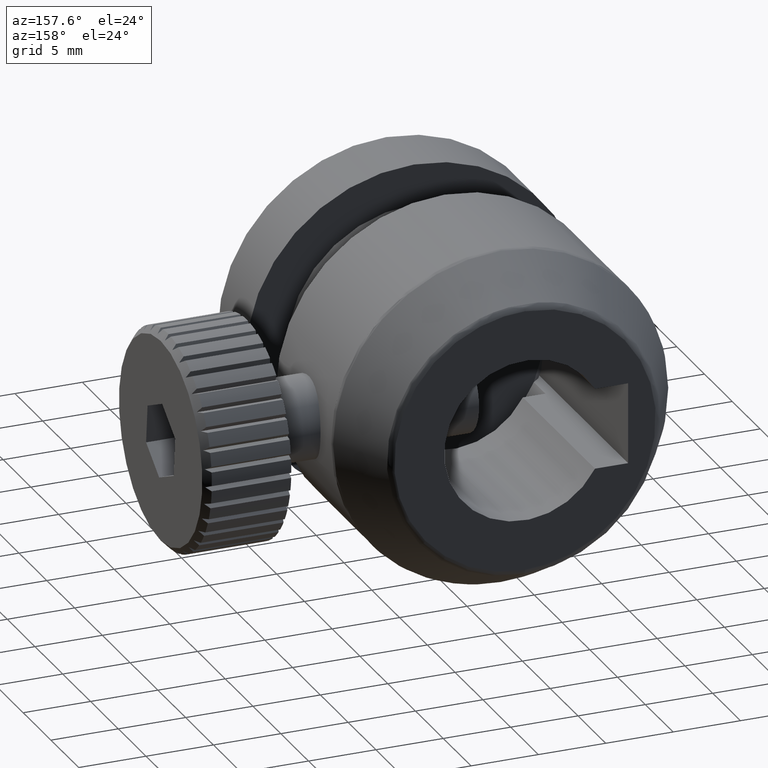
[diagram: clean part render]
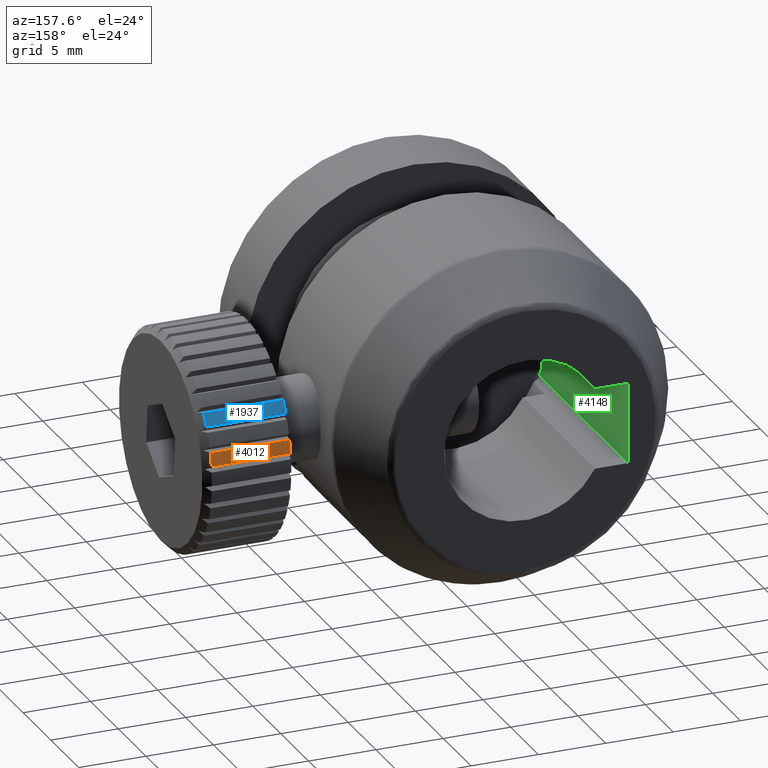
[diagram: same view with three faces highlighted in distinct colors, each labeled with its STEP entity id]
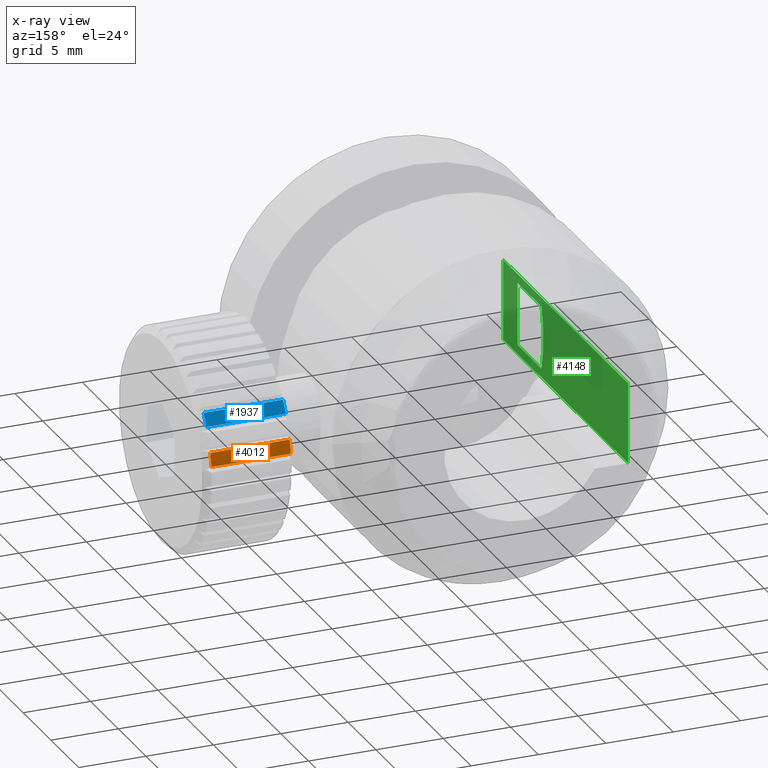
[diagram: x-ray of the same camera — body ghosted, the three highlighted faces saturated]
A machine part, auxiliary view with three faces highlighted in distinct colors.
The next image is the same camera in x-ray (body ghosted, the three faces saturated) — at least one of them is partly hidden behind the body in this view.
Their STEP definitions:

[orange] entity #4012 — the highlighted cylindrical surface (partial cylindrical patch) has radius 8 mm, axis along (1, 0, 0).
#33 = CARTESIAN_POINT ( 'NONE',  ( -2.268710835630495470, 11.38826839223250609, 1.031916268354715172 ) ) ;
#424 = VERTEX_POINT ( 'NONE', #3245 ) ;
#964 = VECTOR ( 'NONE', #3946, 1000.000000000000000 ) ;
#1012 = CYLINDRICAL_SURFACE ( 'NONE', #4987, 7.999999999999994671 ) ;
#1058 = CIRCLE ( 'NONE', #4112, 7.999999999999994671 ) ;
#1310 = DIRECTION ( 'NONE',  ( 2.168404344971010347E-16, 0.000000000000000000, -1.000000000000000000 ) ) ;
#1487 = CARTESIAN_POINT ( 'NONE',  ( 20.13128916436953020, 11.59717246854674144, 0.05976846436289229292 ) ) ;
#1506 = CIRCLE ( 'NONE', #2083, 7.999999999999998224 ) ;
#1536 = ORIENTED_EDGE ( 'NONE', *, *, #2967, .T. ) ;
#1568 = EDGE_LOOP ( 'NONE', ( #4344, #1758, #4881, #1536 ) ) ;
#1653 = EDGE_CURVE ( 'NONE', #424, #3580, #1058, .T. ) ;
#1743 = CARTESIAN_POINT ( 'NONE',  ( 20.13128916436953020, 3.686387940390166040, -1.131654277185411006 ) ) ;
#1758 = ORIENTED_EDGE ( 'NONE', *, *, #2755, .T. ) ;
#1774 = VECTOR ( 'NONE', #4159, 1000.000000000000000 ) ;
#2043 = VERTEX_POINT ( 'NONE', #3285 ) ;
#2083 = AXIS2_PLACEMENT_3D ( 'NONE', #2324, #3884, #2668 ) ;
#2324 = CARTESIAN_POINT ( 'NONE',  ( 19.63128916436953375, 3.686387940390166040, -1.131654277185411006 ) ) ;
#2561 = DIRECTION ( 'NONE',  ( 0.000000000000000000, 0.000000000000000000, -1.000000000000000000 ) ) ;
#2584 = FACE_OUTER_BOUND ( 'NONE', #1568, .T. ) ;
#2616 = CARTESIAN_POINT ( 'NONE',  ( 13.73128916436952451, 11.38826839223250431, 1.031916268354716060 ) ) ;
#2668 = DIRECTION ( 'NONE',  ( 0.000000000000000000, -0.9987437986324323447, 0.05010813001160040886 ) ) ;
#2755 = EDGE_CURVE ( 'NONE', #2043, #424, #3049, .T. ) ;
#2967 = EDGE_CURVE ( 'NONE', #3580, #4627, #4702, .T. ) ;
#3049 = LINE ( 'NONE', #1487, #1774 ) ;
#3245 = CARTESIAN_POINT ( 'NONE',  ( 13.73128916436952274, 11.59717246854673967, 0.05976846436289199455 ) ) ;
#3265 = DIRECTION ( 'NONE',  ( 1.000000000000000000, 5.563119965979017169E-18, 1.108828360943316457E-16 ) ) ;
#3285 = CARTESIAN_POINT ( 'NONE',  ( 19.63128916436953375, 11.59717246854674322, 0.05976846436288947573 ) ) ;
#3580 = VERTEX_POINT ( 'NONE', #2616 ) ;
#3884 = DIRECTION ( 'NONE',  ( 1.000000000000000000, 5.563119965979017169E-18, 1.108828360943316457E-16 ) ) ;
#3946 = DIRECTION ( 'NONE',  ( 1.000000000000000000, -3.653617967992042293E-17, -1.598819398919157440E-16 ) ) ;
#4012 = ADVANCED_FACE ( 'NONE', ( #2584 ), #1012, .T. ) ;
#4112 = AXIS2_PLACEMENT_3D ( 'NONE', #4889, #3265, #1310 ) ;
#4159 = DIRECTION ( 'NONE',  ( -1.000000000000000000, -5.563119965979017169E-18, -1.108828360943316457E-16 ) ) ;
#4344 = ORIENTED_EDGE ( 'NONE', *, *, #4641, .F. ) ;
#4627 = VERTEX_POINT ( 'NONE', #4644 ) ;
#4641 = EDGE_CURVE ( 'NONE', #2043, #4627, #1506, .T. ) ;
#4644 = CARTESIAN_POINT ( 'NONE',  ( 19.63128916436953375, 11.38826839223250609, 1.031916268354711619 ) ) ;
#4702 = LINE ( 'NONE', #33, #964 ) ;
#4881 = ORIENTED_EDGE ( 'NONE', *, *, #1653, .T. ) ;
#4889 = CARTESIAN_POINT ( 'NONE',  ( 13.73128916436951918, 3.686387940390166040, -1.131654277185411672 ) ) ;
#4926 = DIRECTION ( 'NONE',  ( 1.000000000000000000, 5.563119965979017169E-18, 1.108828360943316457E-16 ) ) ;
#4987 = AXIS2_PLACEMENT_3D ( 'NONE', #1743, #4926, #2561 ) ;

[blue] entity #1937 — the highlighted cylindrical surface (partial cylindrical patch) has radius 8 mm, axis along (1, 0, 0).
#107 = VERTEX_POINT ( 'NONE', #1543 ) ;
#281 = ORIENTED_EDGE ( 'NONE', *, *, #4677, .T. ) ;
#307 = CIRCLE ( 'NONE', #3859, 7.999999999999998224 ) ;
#338 = CARTESIAN_POINT ( 'NONE',  ( 13.73128916436952274, 10.71260320930041843, 2.693564539422646842 ) ) ;
#383 = ORIENTED_EDGE ( 'NONE', *, *, #3429, .T. ) ;
#434 = CIRCLE ( 'NONE', #3010, 7.999999999999994671 ) ;
#494 = DIRECTION ( 'NONE',  ( 1.000000000000000000, 5.563119965979017169E-18, 1.108828360943316457E-16 ) ) ;
#569 = CARTESIAN_POINT ( 'NONE',  ( 19.63128916436953375, 3.686387940390166040, -1.131654277185411006 ) ) ;
#622 = LINE ( 'NONE', #4177, #4662 ) ;
#795 = AXIS2_PLACEMENT_3D ( 'NONE', #2883, #494, #4855 ) ;
#1044 = ORIENTED_EDGE ( 'NONE', *, *, #4440, .T. ) ;
#1543 = CARTESIAN_POINT ( 'NONE',  ( 19.63128916436953375, 10.71260320930042198, 2.693564539422647730 ) ) ;
#1937 = ADVANCED_FACE ( 'NONE', ( #4750 ), #1986, .T. ) ;
#1986 = CYLINDRICAL_SURFACE ( 'NONE', #795, 7.999999999999994671 ) ;
#2140 = EDGE_CURVE ( 'NONE', #107, #3231, #307, .T. ) ;
#2347 = DIRECTION ( 'NONE',  ( 2.168404344971010347E-16, 0.000000000000000000, -1.000000000000000000 ) ) ;
#2510 = CARTESIAN_POINT ( 'NONE',  ( 20.13128916436953020, 10.71260320930041843, 2.693564539422648618 ) ) ;
#2743 = CARTESIAN_POINT ( 'NONE',  ( 13.73128916436951918, 3.686387940390166040, -1.131654277185411672 ) ) ;
#2883 = CARTESIAN_POINT ( 'NONE',  ( 20.13128916436953020, 3.686387940390166040, -1.131654277185411006 ) ) ;
#3010 = AXIS2_PLACEMENT_3D ( 'NONE', #2743, #4328, #2347 ) ;
#3231 = VERTEX_POINT ( 'NONE', #4991 ) ;
#3251 = VERTEX_POINT ( 'NONE', #338 ) ;
#3429 = EDGE_CURVE ( 'NONE', #107, #3251, #4803, .T. ) ;
#3472 = CARTESIAN_POINT ( 'NONE',  ( 13.73128916436952274, 10.18380345908081708, 3.535635255024673906 ) ) ;
#3596 = DIRECTION ( 'NONE',  ( -1.000000000000000000, -5.563119965979017169E-18, -1.108828360943316457E-16 ) ) ;
#3636 = EDGE_LOOP ( 'NONE', ( #3650, #383, #281, #1044 ) ) ;
#3650 = ORIENTED_EDGE ( 'NONE', *, *, #2140, .F. ) ;
#3727 = VERTEX_POINT ( 'NONE', #3472 ) ;
#3859 = AXIS2_PLACEMENT_3D ( 'NONE', #569, #4547, #4516 ) ;
#4177 = CARTESIAN_POINT ( 'NONE',  ( -2.268710835630495470, 10.18380345908081708, 3.535635255024671242 ) ) ;
#4197 = VECTOR ( 'NONE', #3596, 1000.000000000000000 ) ;
#4328 = DIRECTION ( 'NONE',  ( 1.000000000000000000, 5.563119965979017169E-18, 1.108828360943316457E-16 ) ) ;
#4440 = EDGE_CURVE ( 'NONE', #3727, #3231, #622, .T. ) ;
#4516 = DIRECTION ( 'NONE',  ( 0.000000000000000000, -0.9987437986324323447, 0.05010813001160040886 ) ) ;
#4547 = DIRECTION ( 'NONE',  ( 1.000000000000000000, 5.563119965979017169E-18, 1.108828360943316457E-16 ) ) ;
#4548 = DIRECTION ( 'NONE',  ( 1.000000000000000000, 2.035006556008971217E-17, -1.627359885240675400E-16 ) ) ;
#4662 = VECTOR ( 'NONE', #4548, 1000.000000000000000 ) ;
#4677 = EDGE_CURVE ( 'NONE', #3251, #3727, #434, .T. ) ;
#4750 = FACE_OUTER_BOUND ( 'NONE', #3636, .T. ) ;
#4803 = LINE ( 'NONE', #2510, #4197 ) ;
#4855 = DIRECTION ( 'NONE',  ( 0.000000000000000000, 0.000000000000000000, -1.000000000000000000 ) ) ;
#4991 = CARTESIAN_POINT ( 'NONE',  ( 19.63128916436953375, 10.18380345908081885, 3.535635255024667689 ) ) ;

[green] entity #4148 — the highlighted planar face has unit normal (-1, 0, 0).
#20 = ORIENTED_EDGE ( 'NONE', *, *, #1008, .T. ) ;
#74 = VECTOR ( 'NONE', #1401, 1000.000000000000000 ) ;
#104 = CARTESIAN_POINT ( 'NONE',  ( -10.64832701914373203, -9.313612059609834404, -4.131654277185413449 ) ) ;
#208 = EDGE_CURVE ( 'NONE', #3174, #1942, #3354, .T. ) ;
#219 = DIRECTION ( 'NONE',  ( -0.000000000000000000, -1.000000000000000000, 0.000000000000000000 ) ) ;
#240 = CARTESIAN_POINT ( 'NONE',  ( -10.64832701914373025, -6.713612059609834759, 1.208751670508293907 ) ) ;
#270 = EDGE_CURVE ( 'NONE', #1939, #1856, #613, .T. ) ;
#496 = ORIENTED_EDGE ( 'NONE', *, *, #2794, .F. ) ;
#593 = CARTESIAN_POINT ( 'NONE',  ( -10.64832701914373025, -2.413612059609834493, 1.208751670508281695 ) ) ;
#613 = LINE ( 'NONE', #1947, #4954 ) ;
#680 = CARTESIAN_POINT ( 'NONE',  ( -10.64832701914373025, 13.18638794039016382, -1.131654277185413671 ) ) ;
#885 = VECTOR ( 'NONE', #2201, 1000.000000000000000 ) ;
#972 = ORIENTED_EDGE ( 'NONE', *, *, #2613, .F. ) ;
#1008 = EDGE_CURVE ( 'NONE', #2817, #1856, #3709, .T. ) ;
#1034 = ORIENTED_EDGE ( 'NONE', *, *, #208, .F. ) ;
#1064 = PLANE ( 'NONE',  #4412 ) ;
#1076 = ORIENTED_EDGE ( 'NONE', *, *, #2131, .F. ) ;
#1195 = DIRECTION ( 'NONE',  ( -1.000000000000000000, 0.000000000000000000, 1.445602896647339410E-16 ) ) ;
#1327 = CARTESIAN_POINT ( 'NONE',  ( -10.64832701914373025, -6.713612059609834759, -3.472060224879117918 ) ) ;
#1380 = CARTESIAN_POINT ( 'NONE',  ( -10.64832701914373203, -2.063608394606279539, -1.929178545688214452 ) ) ;
#1401 = DIRECTION ( 'NONE',  ( -1.445602896647339410E-16, -0.000000000000000000, -1.000000000000000000 ) ) ;
#1450 = FACE_BOUND ( 'NONE', #2546, .T. ) ;
#1513 = LINE ( 'NONE', #3923, #2263 ) ;
#1592 = VERTEX_POINT ( 'NONE', #3681 ) ;
#1615 = LINE ( 'NONE', #3511, #2023 ) ;
#1670 = CARTESIAN_POINT ( 'NONE',  ( -10.64832701914373025, -12.81361205960983440, -4.131654277185413449 ) ) ;
#1695 = DIRECTION ( 'NONE',  ( 1.445602896647339410E-16, 0.000000000000000000, 1.000000000000000000 ) ) ;
#1728 = CARTESIAN_POINT ( 'NONE',  ( -10.64832701914373025, -12.81361205960983440, 1.868345722814586329 ) ) ;
#1856 = VERTEX_POINT ( 'NONE', #1888 ) ;
#1888 = CARTESIAN_POINT ( 'NONE',  ( -10.64832701914373203, -9.313612059609836180, 1.868345722814586329 ) ) ;
#1939 = VERTEX_POINT ( 'NONE', #104 ) ;
#1942 = VERTEX_POINT ( 'NONE', #1327 ) ;
#1947 = CARTESIAN_POINT ( 'NONE',  ( -10.64832701914373025, -9.313612059609836180, -4.131654277185413449 ) ) ;
#1950 = CARTESIAN_POINT ( 'NONE',  ( -10.64832701914373025, -2.413612059609833160, -3.472060224879116141 ) ) ;
#2023 = VECTOR ( 'NONE', #4345, 1000.000000000000000 ) ;
#2131 = EDGE_CURVE ( 'NONE', #2659, #1592, #3092, .T. ) ;
#2146 = CARTESIAN_POINT ( 'NONE',  ( -10.64832701914373381, -2.190058635457280634, -2.707907580769309597 ) ) ;
#2201 = DIRECTION ( 'NONE',  ( -0.000000000000000000, 0.000000000000000000, -1.000000000000000000 ) ) ;
#2234 = LINE ( 'NONE', #2681, #3103 ) ;
#2263 = VECTOR ( 'NONE', #2289, 1000.000000000000000 ) ;
#2289 = DIRECTION ( 'NONE',  ( 0.000000000000000000, 1.000000000000000000, 0.000000000000000000 ) ) ;
#2296 = CARTESIAN_POINT ( 'NONE',  ( -10.64832701914373203, 13.18638794039016382, -4.131654277185413449 ) ) ;
#2546 = EDGE_LOOP ( 'NONE', ( #1034, #496, #1076, #972 ) ) ;
#2613 = EDGE_CURVE ( 'NONE', #1942, #2659, #1615, .T. ) ;
#2659 = VERTEX_POINT ( 'NONE', #1950 ) ;
#2681 = CARTESIAN_POINT ( 'NONE',  ( -10.64832701914373025, -12.81361205960983440, 1.208751670508281029 ) ) ;
#2794 = EDGE_CURVE ( 'NONE', #1592, #3174, #2234, .T. ) ;
#2817 = VERTEX_POINT ( 'NONE', #4579 ) ;
#2933 = DIRECTION ( 'NONE',  ( -0.000000000000000000, -1.000000000000000000, -0.000000000000000000 ) ) ;
#2956 = CARTESIAN_POINT ( 'NONE',  ( -10.64832701914373025, -2.063615724774934712, -0.3340596994509983930 ) ) ;
#3001 = EDGE_LOOP ( 'NONE', ( #4842, #5107, #20, #3755 ) ) ;
#3029 = FACE_OUTER_BOUND ( 'NONE', #3001, .T. ) ;
#3092 = B_SPLINE_CURVE_WITH_KNOTS ( 'NONE', 3,
 ( #4930, #2146, #1380, #2956, #4176, #593 ),
 .UNSPECIFIED., .F., .F.,
 ( 4, 2, 4 ),
 ( 1.754130557487788560E-17, 0.002366466713278309476, 0.004732933426556600737 ),
 .UNSPECIFIED. ) ;
#3103 = VECTOR ( 'NONE', #219, 1000.000000000000000 ) ;
#3174 = VERTEX_POINT ( 'NONE', #240 ) ;
#3176 = EDGE_CURVE ( 'NONE', #2817, #3710, #3425, .T. ) ;
#3354 = LINE ( 'NONE', #4951, #74 ) ;
#3425 = LINE ( 'NONE', #680, #885 ) ;
#3511 = CARTESIAN_POINT ( 'NONE',  ( -10.64832701914373025, -12.81361205960983440, -3.472060224879103263 ) ) ;
#3681 = CARTESIAN_POINT ( 'NONE',  ( -10.64832701914373025, -2.413612059609834493, 1.208751670508281695 ) ) ;
#3709 = LINE ( 'NONE', #1728, #4464 ) ;
#3710 = VERTEX_POINT ( 'NONE', #2296 ) ;
#3755 = ORIENTED_EDGE ( 'NONE', *, *, #270, .F. ) ;
#3923 = CARTESIAN_POINT ( 'NONE',  ( -10.64832701914373025, -12.81361205960983440, -4.131654277185413449 ) ) ;
#4148 = ADVANCED_FACE ( 'NONE', ( #1450, #3029 ), #1064, .F. ) ;
#4176 = CARTESIAN_POINT ( 'NONE',  ( -10.64832701914372848, -2.190059691311057044, 0.4446026355288780763 ) ) ;
#4345 = DIRECTION ( 'NONE',  ( 0.000000000000000000, 1.000000000000000000, -0.000000000000000000 ) ) ;
#4412 = AXIS2_PLACEMENT_3D ( 'NONE', #1670, #1195, #1695 ) ;
#4464 = VECTOR ( 'NONE', #2933, 1000.000000000000000 ) ;
#4579 = CARTESIAN_POINT ( 'NONE',  ( -10.64832701914373203, 13.18638794039016382, 1.868345722814584109 ) ) ;
#4735 = DIRECTION ( 'NONE',  ( 1.445602896647339410E-16, 0.000000000000000000, 1.000000000000000000 ) ) ;
#4842 = ORIENTED_EDGE ( 'NONE', *, *, #5091, .T. ) ;
#4930 = CARTESIAN_POINT ( 'NONE',  ( -10.64832701914373025, -2.413612059609833160, -3.472060224879116141 ) ) ;
#4951 = CARTESIAN_POINT ( 'NONE',  ( -10.64832701914373025, -6.713612059609834759, -4.131654277185413449 ) ) ;
#4954 = VECTOR ( 'NONE', #4735, 1000.000000000000000 ) ;
#5091 = EDGE_CURVE ( 'NONE', #1939, #3710, #1513, .T. ) ;
#5107 = ORIENTED_EDGE ( 'NONE', *, *, #3176, .F. ) ;